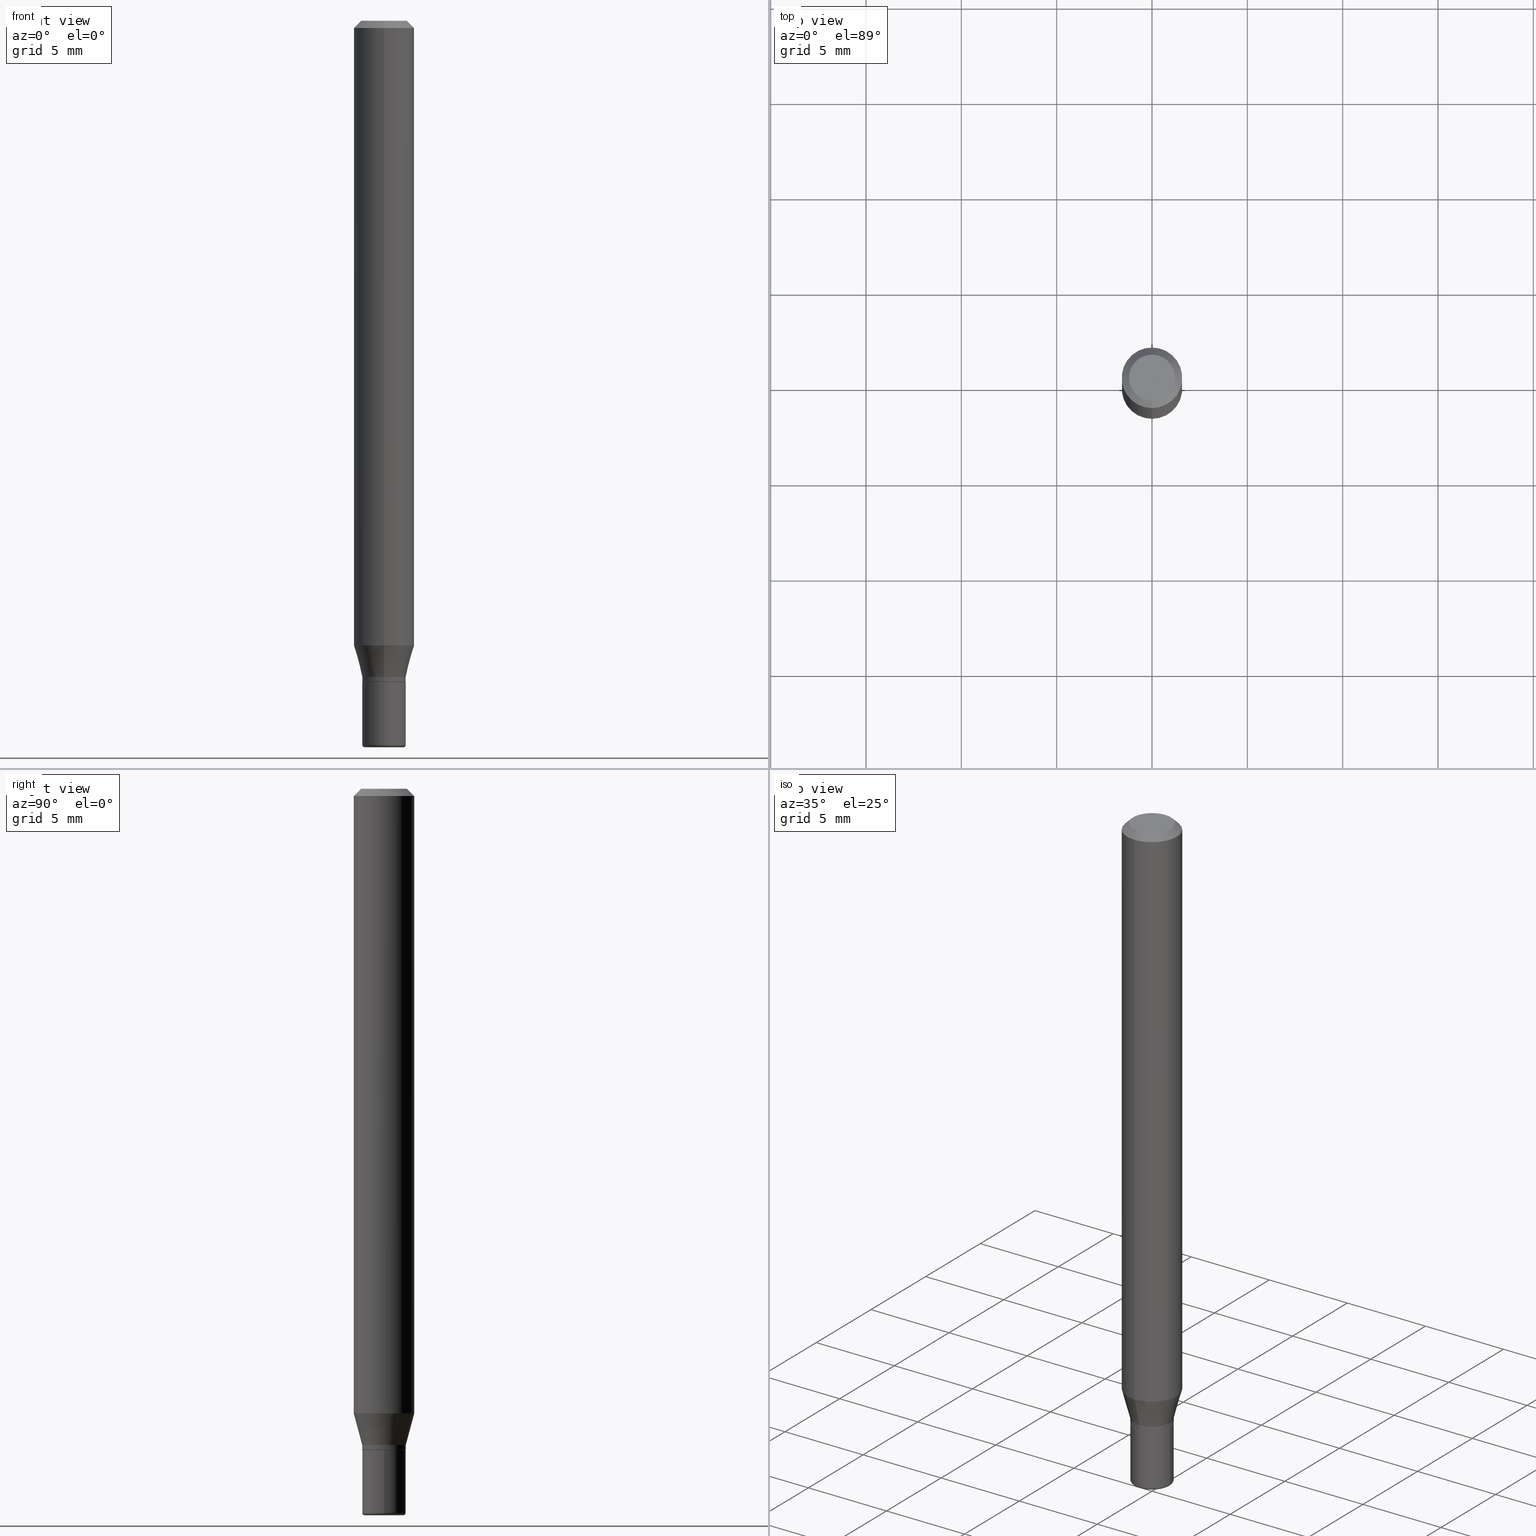
[diagram: canonical four-view strip — front | top / right | iso, engineering-drawing reading convention]
A machine part, canonical four-view strip (front | top / right | iso — engineering-drawing reading convention). The complete STEP part file that produces these views, byte-faithful:
ISO-10303-21;
HEADER;
FILE_DESCRIPTION (( 'STEP AP203' ),
    '1' );
FILE_NAME ('08716.STEP',
    '2024-02-29T20:33:48',
    ( '' ),
    ( '' ),
    'SwSTEP 2.0',
    'SolidWorks 2023',
    '' );
FILE_SCHEMA (( 'CONFIG_CONTROL_DESIGN' ));
ENDSEC;

DATA;
#1 = CARTESIAN_POINT ( 'NONE',  ( -0.04000000000000000083, -4.926512642219568995E-15, -1.499999999999999778 ) ) ;
#2 = FACE_OUTER_BOUND ( 'NONE', #187, .T. ) ;
#3 = APPROVAL_ROLE ( '' ) ;
#4 = CARTESIAN_POINT ( 'NONE',  ( 0.000000000000000000, 0.000000000000000000, 0.000000000000000000 ) ) ;
#5 = VECTOR ( 'NONE', #86, 39.37007874015748143 ) ;
#6 = FACE_OUTER_BOUND ( 'NONE', #452, .T. ) ;
#7 = ORIENTED_EDGE ( 'NONE', *, *, #157, .T. ) ;
#8 = PRODUCT_DEFINITION_FORMATION_WITH_SPECIFIED_SOURCE ( 'ANY', '', #314, .NOT_KNOWN. ) ;
#9 = EDGE_CURVE ( 'NONE', #503, #242, #404, .T. ) ;
#10 = SECURITY_CLASSIFICATION_LEVEL ( 'unclassified' ) ;
#11 = CARTESIAN_POINT ( 'NONE',  ( 3.338064920442711836E-29, -4.765872027520893280E-15, -1.364999999999999991 ) ) ;
#12 = ORIENTED_EDGE ( 'NONE', *, *, #70, .T. ) ;
#13 = PRODUCT_DEFINITION_SHAPE ( 'NONE', 'NONE',  #354 ) ;
#14 = FACE_OUTER_BOUND ( 'NONE', #219, .T. ) ;
#15 = DIRECTION ( 'NONE',  ( -6.982962677686266711E-15, -1.000000000000000000, 6.138984255425318536E-15 ) ) ;
#16 = EDGE_LOOP ( 'NONE', ( #156, #459, #223, #210 ) ) ;
#17 = FACE_OUTER_BOUND ( 'NONE', #285, .T. ) ;
#18 = EDGE_LOOP ( 'NONE', ( #233, #12, #308, #261 ) ) ;
#19 = CIRCLE ( 'NONE', #145, 0.04499999999999996364 ) ;
#20 = DIRECTION ( 'NONE',  ( -6.982962677686266711E-15, -1.000000000000000000, 6.138984255425318536E-15 ) ) ;
#21 = ORIENTED_EDGE ( 'NONE', *, *, #442, .T. ) ;
#22 = CARTESIAN_POINT ( 'NONE',  ( 3.153808195759828590E-29, -4.503049042200963587E-15, -1.289689110867544342 ) ) ;
#23 = DIMENSIONAL_EXPONENTS ( 1.000000000000000000, 0.000000000000000000, 0.000000000000000000, 0.000000000000000000, 0.000000000000000000, 0.000000000000000000, 0.000000000000000000 ) ;
#24 = DIRECTION ( 'NONE',  ( -2.445401895064720952E-29, 3.491577159375925381E-15, 1.000000000000000000 ) ) ;
#25 = ADVANCED_FACE ( 'NONE', ( #317 ), #112, .F. ) ;
#26 = EDGE_CURVE ( 'NONE', #487, #69, #455, .T. ) ;
#27 = AXIS2_PLACEMENT_3D ( 'NONE', #103, #502, #498 ) ;
#28 = FACE_OUTER_BOUND ( 'NONE', #71, .T. ) ;
#29 = CC_DESIGN_APPROVAL ( #236, ( #8 ) ) ;
#30 = EDGE_LOOP ( 'NONE', ( #246, #21, #332, #114 ) ) ;
#31 = CARTESIAN_POINT ( 'NONE',  ( 3.819167204710860394E-16, 0.04499999999999523131, -1.355000000000000204 ) ) ;
#32 = ORIENTED_EDGE ( 'NONE', *, *, #164, .F. ) ;
#33 = EDGE_LOOP ( 'NONE', ( #154, #74, #450, #355 ) ) ;
#34 = APPLICATION_CONTEXT ( 'configuration controlled 3d designs of mechanical parts and assemblies' ) ;
#35 = DATE_AND_TIME ( #386, #172 ) ;
#36 = CYLINDRICAL_SURFACE ( 'NONE', #281, 0.04499999999999995670 ) ;
#37 = CC_DESIGN_PERSON_AND_ORGANIZATION_ASSIGNMENT ( #165, #446, ( #8 ) ) ;
#38 = DIRECTION ( 'NONE',  ( -6.982962677686266711E-15, -1.000000000000000000, 3.491481338843145583E-15 ) ) ;
#39 = ORIENTED_EDGE ( 'NONE', *, *, #442, .F. ) ;
#40 = LOCAL_TIME ( 15, 33, 48.00000000000000000, #168 ) ;
#41 = DIRECTION ( 'NONE',  ( 1.000000000000000000, -6.982962677686273021E-15, 0.000000000000000000 ) ) ;
#42 = CARTESIAN_POINT ( 'NONE',  ( -0.04499999999999999833, -4.673074083453654421E-15, -1.364999999999999991 ) ) ;
#43 = AXIS2_PLACEMENT_3D ( 'NONE', #351, #146, #460 ) ;
#44 = EDGE_CURVE ( 'NONE', #352, #309, #481, .T. ) ;
#45 = AXIS2_PLACEMENT_3D ( 'NONE', #220, #506, #271 ) ;
#46 = APPROVAL_DATE_TIME ( #329, #236 ) ;
#47 = ORIENTED_EDGE ( 'NONE', *, *, #316, .F. ) ;
#48 = FACE_OUTER_BOUND ( 'NONE', #369, .T. ) ;
#49 = CC_DESIGN_DATE_AND_TIME_ASSIGNMENT ( #35, #431, ( #354 ) ) ;
#50 = DIRECTION ( 'NONE',  ( 1.000000000000000000, -6.982962677686261189E-15, 4.883557194083110098E-29 ) ) ;
#51 = ORIENTED_EDGE ( 'NONE', *, *, #137, .T. ) ;
#52 = CARTESIAN_POINT ( 'NONE',  ( -0.04499999999999990119, -4.673074083453654421E-15, -1.495000000000000329 ) ) ;
#53 = CIRCLE ( 'NONE', #480, 0.04449999999999994238 ) ;
#54 = ORIENTED_EDGE ( 'NONE', *, *, #230, .F. ) ;
#55 = FACE_OUTER_BOUND ( 'NONE', #18, .T. ) ;
#56 = DIRECTION ( 'NONE',  ( -2.445401895064720952E-29, 3.491577159375925381E-15, 1.000000000000000000 ) ) ;
#57 = PERSON_AND_ORGANIZATION ( #394, #255 ) ;
#58 = DIRECTION ( 'NONE',  ( 1.000000000000000000, -6.982962677686269077E-15, 0.000000000000000000 ) ) ;
#59 = DIRECTION ( 'NONE',  ( -6.982962677686265922E-15, -1.000000000000000000, 3.491577159375925381E-15 ) ) ;
#60 = CONICAL_SURFACE ( 'NONE', #61, 0.06250000000000000000, 0.7853981633974488341 ) ;
#61 = AXIS2_PLACEMENT_3D ( 'NONE', #291, #244, #257 ) ;
#62 = DIRECTION ( 'NONE',  ( -2.445401895064720952E-29, 3.491577159375925381E-15, 1.000000000000000000 ) ) ;
#63 = ADVANCED_FACE ( 'NONE', ( #6 ), #212, .T. ) ;
#64 = DIRECTION ( 'NONE',  ( 7.105427357601001859E-15, 1.000000000000000000, -3.491481338843145583E-15 ) ) ;
#65 = CC_DESIGN_PERSON_AND_ORGANIZATION_ASSIGNMENT ( #241, #279, ( #354 ) ) ;
#66 = DIRECTION ( 'NONE',  ( -2.445468806185136597E-29, 3.491481338843145583E-15, 1.000000000000000000 ) ) ;
#67 = VECTOR ( 'NONE', #374, 39.37007874015748143 ) ;
#68 = DIRECTION ( 'NONE',  ( 1.000000000000000000, -6.982962677686259611E-15, 0.000000000000000000 ) ) ;
#69 = VERTEX_POINT ( 'NONE', #399 ) ;
#70 = EDGE_CURVE ( 'NONE', #203, #467, #477, .T. ) ;
#71 = EDGE_LOOP ( 'NONE', ( #185, #102 ) ) ;
#72 = CARTESIAN_POINT ( 'NONE',  ( 3.840629472727447874E-16, 0.04750000000000000749, 1.073394357713768638E-16 ) ) ;
#73 = AXIS2_PLACEMENT_3D ( 'NONE', #254, #337, #490 ) ;
#74 = ORIENTED_EDGE ( 'NONE', *, *, #159, .T. ) ;
#75 = AXIS2_PLACEMENT_3D ( 'NONE', #333, #327, #286 ) ;
#76 = DIRECTION ( 'NONE',  ( 1.000000000000000000, 0.000000000000000000, 0.000000000000000000 ) ) ;
#77 = EDGE_CURVE ( 'NONE', #471, #296, #298, .T. ) ;
#78 = ADVANCED_FACE ( 'NONE', ( #407 ), #320, .T. ) ;
#79 = APPROVAL_DATE_TIME ( #278, #158 ) ;
#80 = CARTESIAN_POINT ( 'NONE',  ( -4.287811248607203282E-16, -0.06250000000000005551, -0.01499999999999948597 ) ) ;
#81 = PERSON_AND_ORGANIZATION_ROLE ( 'classification_officer' ) ;
#82 = AXIS2_PLACEMENT_3D ( 'NONE', #229, #457, #107 ) ;
#83 = DIRECTION ( 'NONE',  ( -6.982962677686265133E-15, -1.000000000000000000, 3.491577159375924592E-15 ) ) ;
#84 = DIRECTION ( 'NONE',  ( 1.000000000000000000, -6.982962677686266711E-15, 4.876176775795934672E-29 ) ) ;
#85 = ADVANCED_FACE ( 'NONE', ( #509 ), #36, .T. ) ;
#86 = DIRECTION ( 'NONE',  ( -2.445401895064721232E-29, 3.491577159375925381E-15, 1.000000000000000000 ) ) ;
#87 = PLANE ( 'NONE',  #310 ) ;
#88 = UNCERTAINTY_MEASURE_WITH_UNIT (LENGTH_MEASURE( 1.000000000000000082E-05 ), #152, 'distance_accuracy_value', 'NONE');
#89 = ORIENTED_EDGE ( 'NONE', *, *, #444, .T. ) ;
#90 = FACE_OUTER_BOUND ( 'NONE', #313, .T. ) ;
#91 = DIRECTION ( 'NONE',  ( -2.445468806185136877E-29, 3.491481338843145188E-15, 1.000000000000000000 ) ) ;
#92 = AXIS2_PLACEMENT_3D ( 'NONE', #217, #56, #15 ) ;
#93 = AXIS2_PLACEMENT_3D ( 'NONE', #382, #461, #101 ) ;
#94 = ORIENTED_EDGE ( 'NONE', *, *, #504, .T. ) ;
#95 = DIRECTION ( 'NONE',  ( -2.445401895064720952E-29, 3.491577159375925381E-15, 1.000000000000000000 ) ) ;
#96 = DIRECTION ( 'NONE',  ( 1.000000000000000000, -6.982962677686266711E-15, 4.876176775795934672E-29 ) ) ;
#97 = CARTESIAN_POINT ( 'NONE',  ( 3.161915174132775027E-16, 0.04449999999999518230, -1.365000000000000435 ) ) ;
#98 = EDGE_LOOP ( 'NONE', ( #371, #135, #484, #32 ) ) ;
#99 = CARTESIAN_POINT ( 'NONE',  ( 0.000000000000000000, 0.000000000000000000, 0.000000000000000000 ) ) ;
#100 = CIRCLE ( 'NONE', #124, 0.04750000000000000749 ) ;
#101 = DIRECTION ( 'NONE',  ( -6.982962677686265922E-15, -1.000000000000000000, 3.483106191921935554E-15 ) ) ;
#102 = ORIENTED_EDGE ( 'NONE', *, *, #444, .F. ) ;
#103 = CARTESIAN_POINT ( 'NONE',  ( 3.655975865246779122E-29, -5.219764601570503141E-15, -1.495000000000000107 ) ) ;
#104 = DIRECTION ( 'NONE',  ( -6.982962677686265133E-15, -1.000000000000000000, 3.491577159375924592E-15 ) ) ;
#105 = ORIENTED_EDGE ( 'NONE', *, *, #222, .F. ) ;
#106 = CLOSED_SHELL ( 'NONE', ( #323, #78, #266, #204, #436, #445, #179, #117, #25, #280, #411, #85 ) ) ;
#107 = DIRECTION ( 'NONE',  ( -6.982962677686265922E-15, -1.000000000000000000, 4.370956789862821150E-15 ) ) ;
#108 = APPROVAL_PERSON_ORGANIZATION ( #367, #236, #3 ) ;
#109 = APPLICATION_CONTEXT ( 'configuration controlled 3d designs of mechanical parts and assemblies' ) ;
#110 = CARTESIAN_POINT ( 'NONE',  ( 3.197442310920447267E-16, 0.04499999999999995670, -1.571209721719164715E-16 ) ) ;
#111 = FACE_OUTER_BOUND ( 'NONE', #400, .T. ) ;
#112 = PLANE ( 'NONE',  #169 ) ;
#113 = CARTESIAN_POINT ( 'NONE',  ( 3.179678742526777547E-16, 0.04449999999999518230, -1.365000000000000435 ) ) ;
#114 = ORIENTED_EDGE ( 'NONE', *, *, #159, .F. ) ;
#115 = CARTESIAN_POINT ( 'NONE',  ( 0.000000000000000000, 0.000000000000000000, 0.000000000000000000 ) ) ;
#116 = VECTOR ( 'NONE', #518, 39.37007874015748143 ) ;
#117 = ADVANCED_FACE ( 'NONE', ( #111 ), #358, .T. ) ;
#118 = CALENDAR_DATE ( 2024, 29, 2 ) ;
#119 = PERSON_AND_ORGANIZATION ( #394, #255 ) ;
#120 = CARTESIAN_POINT ( 'NONE',  ( -0.04499999999999994976, 3.197442310920447267E-16, -2.213520790614704757E-30 ) ) ;
#121 = CC_DESIGN_PERSON_AND_ORGANIZATION_ASSIGNMENT ( #132, #439, ( #8 ) ) ;
#122 = EDGE_LOOP ( 'NONE', ( #194, #180, #301, #424 ) ) ;
#123 = CARTESIAN_POINT ( 'NONE',  ( 3.655975865246779683E-29, -5.219764601570503930E-15, -1.495000000000000329 ) ) ;
#124 = AXIS2_PLACEMENT_3D ( 'NONE', #224, #297, #104 ) ;
#125 = LOCAL_TIME ( 15, 33, 48.00000000000000000, #488 ) ;
#126 = LINE ( 'NONE', #80, #116 ) ;
#127 = CARTESIAN_POINT ( 'NONE',  ( -3.107418391570051034E-16, -0.04450000000000470940, -1.364999999999999769 ) ) ;
#128 = VERTEX_POINT ( 'NONE', #482 ) ;
#129 = PERSON_AND_ORGANIZATION ( #394, #255 ) ;
#130 = CARTESIAN_POINT ( 'NONE',  ( -3.142333204958816371E-16, -0.04499999999999995670, 1.571209721719164715E-16 ) ) ;
#131 = VERTEX_POINT ( 'NONE', #441 ) ;
#132 = PERSON_AND_ORGANIZATION ( #394, #255 ) ;
#133 = LINE ( 'NONE', #365, #134 ) ;
#134 = VECTOR ( 'NONE', #288, 39.37007874015748143 ) ;
#135 = ORIENTED_EDGE ( 'NONE', *, *, #495, .T. ) ;
#136 = CALENDAR_DATE ( 2024, 29, 2 ) ;
#137 = EDGE_CURVE ( 'NONE', #69, #148, #126, .T. ) ;
#138 = CARTESIAN_POINT ( 'NONE',  ( 4.364351673553919652E-16, 0.06249999999999995143, -0.01499999999999992138 ) ) ;
#139 = CARTESIAN_POINT ( 'NONE',  ( -0.04000000000000000083, -4.935547507266463603E-15, -1.495000000000000107 ) ) ;
#140 = ORIENTED_EDGE ( 'NONE', *, *, #137, .F. ) ;
#141 = ADVANCED_FACE ( 'NONE', ( #2 ), #479, .T. ) ;
#142 = DIRECTION ( 'NONE',  ( -2.445401895064720952E-29, 3.491577159375925381E-15, 1.000000000000000000 ) ) ;
#143 = VERTEX_POINT ( 'NONE', #127 ) ;
#144 = AXIS2_PLACEMENT_3D ( 'NONE', #181, #339, #483 ) ;
#145 = AXIS2_PLACEMENT_3D ( 'NONE', #345, #343, #470 ) ;
#146 = DIRECTION ( 'NONE',  ( -2.445401895064720952E-29, 3.491577159375925381E-15, 1.000000000000000000 ) ) ;
#147 = FACE_OUTER_BOUND ( 'NONE', #491, .T. ) ;
#148 = VERTEX_POINT ( 'NONE', #451 ) ;
#149 = FACE_OUTER_BOUND ( 'NONE', #16, .T. ) ;
#150 = EDGE_LOOP ( 'NONE', ( #256, #240, #226, #105 ) ) ;
#151 = AXIS2_PLACEMENT_3D ( 'NONE', #170, #415, #59 ) ;
#152 =( CONVERSION_BASED_UNIT ( 'INCH', #508 ) LENGTH_UNIT ( ) NAMED_UNIT ( #23 ) );
#153 = APPROVAL_PERSON_ORGANIZATION ( #119, #158, #163 ) ;
#154 = ORIENTED_EDGE ( 'NONE', *, *, #495, .F. ) ;
#155 = CARTESIAN_POINT ( 'NONE',  ( 0.04000000000000000083, -5.516540515372168214E-15, -1.499999999999999778 ) ) ;
#156 = ORIENTED_EDGE ( 'NONE', *, *, #463, .T. ) ;
#157 = EDGE_CURVE ( 'NONE', #128, #467, #214, .T. ) ;
#158 = APPROVAL ( #160, 'UNSPECIFIED' ) ;
#159 = EDGE_CURVE ( 'NONE', #296, #471, #456, .T. ) ;
#160 = APPROVAL_STATUS ( 'not_yet_approved' ) ;
#161 = CONICAL_SURFACE ( 'NONE', #447, 0.04449999999999994238, 0.7853981633975507526 ) ;
#162 = VECTOR ( 'NONE', #432, 39.37007874015748143 ) ;
#163 = APPROVAL_ROLE ( '' ) ;
#164 = EDGE_CURVE ( 'NONE', #471, #289, #489, .T. ) ;
#165 = PERSON_AND_ORGANIZATION ( #394, #255 ) ;
#166 = LINE ( 'NONE', #449, #474 ) ;
#167 = CARTESIAN_POINT ( 'NONE',  ( 3.655975865246779122E-29, -5.219764601570503141E-15, -1.495000000000000107 ) ) ;
#168 = COORDINATED_UNIVERSAL_TIME_OFFSET ( 5, 0, .BEHIND. ) ;
#169 = AXIS2_PLACEMENT_3D ( 'NONE', #273, #232, #195 ) ;
#170 = CARTESIAN_POINT ( 'NONE',  ( 0.000000000000000000, 0.000000000000000000, 0.000000000000000000 ) ) ;
#171 = CIRCLE ( 'NONE', #238, 0.004999999999999903827 ) ;
#172 = LOCAL_TIME ( 15, 33, 48.00000000000000000, #199 ) ;
#173 = ORIENTED_EDGE ( 'NONE', *, *, #311, .F. ) ;
#174 = CARTESIAN_POINT ( 'NONE',  ( 3.336750885815811529E-29, -4.764257033968451140E-15, -1.364500000000000046 ) ) ;
#175 = EDGE_CURVE ( 'NONE', #465, #296, #294, .T. ) ;
#176 = APPROVAL_ROLE ( '' ) ;
#177 = CARTESIAN_POINT ( 'NONE',  ( 3.142333204959153116E-16, 0.04499999999999523131, -1.365000000000000435 ) ) ;
#178 = EDGE_CURVE ( 'NONE', #143, #471, #166, .T. ) ;
#179 = ADVANCED_FACE ( 'NONE', ( #90 ), #330, .T. ) ;
#180 = ORIENTED_EDGE ( 'NONE', *, *, #472, .T. ) ;
#181 = CARTESIAN_POINT ( 'NONE',  ( 3.337973586763344623E-29, -4.766002822548138287E-15, -1.364999999999999991 ) ) ;
#182 = CIRCLE ( 'NONE', #464, 0.04449999999999994238 ) ;
#183 = FACE_OUTER_BOUND ( 'NONE', #98, .T. ) ;
#184 = ADVANCED_FACE ( 'NONE', ( #14 ), #87, .F. ) ;
#185 = ORIENTED_EDGE ( 'NONE', *, *, #9, .F. ) ;
#186 = CARTESIAN_POINT ( 'NONE',  ( 3.338064920442711836E-29, -4.765872027520893280E-15, -1.364999999999999991 ) ) ;
#187 = EDGE_LOOP ( 'NONE', ( #338, #378, #231, #258 ) ) ;
#188 = AXIS2_PLACEMENT_3D ( 'NONE', #167, #326, #50 ) ;
#189 = TOROIDAL_SURFACE ( 'NONE', #27, 0.04000000000000000083, 0.004999999999999903827 ) ;
#190 = CONICAL_SURFACE ( 'NONE', #45, 0.04499999999999996364, 0.2617993877991493523 ) ;
#191 = DIRECTION ( 'NONE',  ( -2.445401895064720952E-29, 3.491577159375925381E-15, 1.000000000000000000 ) ) ;
#192 = FACE_OUTER_BOUND ( 'NONE', #30, .T. ) ;
#193 = ORIENTED_EDGE ( 'NONE', *, *, #392, .T. ) ;
#194 = ORIENTED_EDGE ( 'NONE', *, *, #505, .F. ) ;
#195 = DIRECTION ( 'NONE',  ( 6.982962677686265922E-15, 1.000000000000000000, -3.491577159375925381E-15 ) ) ;
#196 = DIRECTION ( 'NONE',  ( -2.445401895064721232E-29, 3.491577159375925381E-15, 1.000000000000000000 ) ) ;
#197 = CARTESIAN_POINT ( 'NONE',  ( 0.000000000000000000, 0.000000000000000000, 0.000000000000000000 ) ) ;
#198 = AXIS2_PLACEMENT_3D ( 'NONE', #11, #494, #58 ) ;
#199 = COORDINATED_UNIVERSAL_TIME_OFFSET ( 5, 0, .BEHIND. ) ;
#200 = ORIENTED_EDGE ( 'NONE', *, *, #392, .F. ) ;
#201 = EDGE_CURVE ( 'NONE', #131, #203, #426, .T. ) ;
#202 = MECHANICAL_CONTEXT ( 'NONE', #109, 'mechanical' ) ;
#203 = VERTEX_POINT ( 'NONE', #52 ) ;
#204 = ADVANCED_FACE ( 'NONE', ( #213 ), #368, .T. ) ;
#205 = CARTESIAN_POINT ( 'NONE',  ( 0.04499999999999994976, -3.142333204958816371E-16, 2.194279549108168164E-30 ) ) ;
#206 = CIRCLE ( 'NONE', #340, 0.04000000000000000083 ) ;
#207 = CC_DESIGN_SECURITY_CLASSIFICATION ( #300, ( #8 ) ) ;
#208 = APPROVAL_DATE_TIME ( #211, #453 ) ;
#209 = CARTESIAN_POINT ( 'NONE',  ( -3.142333204958486036E-16, -0.04500000000000469597, -1.354999999999999538 ) ) ;
#210 = ORIENTED_EDGE ( 'NONE', *, *, #215, .F. ) ;
#211 = DATE_AND_TIME ( #324, #421 ) ;
#212 = TOROIDAL_SURFACE ( 'NONE', #188, 0.04000000000000000083, 0.004999999999999903827 ) ;
#213 = FACE_OUTER_BOUND ( 'NONE', #150, .T. ) ;
#214 = CIRCLE ( 'NONE', #198, 0.04499999999999999833 ) ;
#215 = EDGE_CURVE ( 'NONE', #289, #429, #336, .T. ) ;
#216 = CYLINDRICAL_SURFACE ( 'NONE', #516, 0.04499999999999994976 ) ;
#217 = CARTESIAN_POINT ( 'NONE',  ( 3.337973586763344623E-29, -4.766002822548138287E-15, -1.364999999999999991 ) ) ;
#218 = DIRECTION ( 'NONE',  ( -4.937700262165053702E-15, -0.7071067811866175168, 0.7071067811864775177 ) ) ;
#219 = EDGE_LOOP ( 'NONE', ( #7, #359 ) ) ;
#220 = CARTESIAN_POINT ( 'NONE',  ( 3.313519567812696747E-29, -4.731087050954377992E-15, -1.354999999999999982 ) ) ;
#221 = MANIFOLD_SOLID_BREP ( 'Body-Move/Copy2[2]', #106 ) ;
#222 = EDGE_CURVE ( 'NONE', #429, #148, #133, .T. ) ;
#223 = ORIENTED_EDGE ( 'NONE', *, *, #362, .F. ) ;
#224 = CARTESIAN_POINT ( 'NONE',  ( -6.680577562598756531E-45, 9.538616975837323053E-31, 2.731893508417333475E-16 ) ) ;
#225 = DIRECTION ( 'NONE',  ( -6.982962677686265133E-15, -1.000000000000000000, 3.491577159375924986E-15 ) ) ;
#226 = ORIENTED_EDGE ( 'NONE', *, *, #409, .F. ) ;
#227 = CARTESIAN_POINT ( 'NONE',  ( 3.655975865246779683E-29, -5.219764601570503930E-15, -1.495000000000000329 ) ) ;
#228 = AXIS2_PLACEMENT_3D ( 'NONE', #22, #24, #264 ) ;
#229 = CARTESIAN_POINT ( 'NONE',  ( 3.153808195759828590E-29, -4.503049042200963587E-15, -1.289689110867544342 ) ) ;
#230 = EDGE_CURVE ( 'NONE', #487, #309, #443, .T. ) ;
#231 = ORIENTED_EDGE ( 'NONE', *, *, #511, .T. ) ;
#232 = DIRECTION ( 'NONE',  ( 2.445401895064720671E-29, -3.491577159375925381E-15, -1.000000000000000000 ) ) ;
#233 = ORIENTED_EDGE ( 'NONE', *, *, #201, .T. ) ;
#234 = LINE ( 'NONE', #466, #270 ) ;
#235 = ORIENTED_EDGE ( 'NONE', *, *, #201, .F. ) ;
#236 = APPROVAL ( #247, 'UNSPECIFIED' ) ;
#237 = AXIS2_PLACEMENT_3D ( 'NONE', #356, #331, #83 ) ;
#238 = AXIS2_PLACEMENT_3D ( 'NONE', #139, #64, #385 ) ;
#239 = DIRECTION ( 'NONE',  ( 1.839019923739593610E-15, 0.2588190451025240146, 0.9659258262890673130 ) ) ;
#240 = ORIENTED_EDGE ( 'NONE', *, *, #44, .T. ) ;
#241 = PERSON_AND_ORGANIZATION ( #394, #255 ) ;
#242 = VERTEX_POINT ( 'NONE', #1 ) ;
#243 = AXIS2_PLACEMENT_3D ( 'NONE', #295, #142, #302 ) ;
#244 = DIRECTION ( 'NONE',  ( 2.445401895064720952E-29, -3.491577159375925381E-15, -1.000000000000000000 ) ) ;
#245 = CARTESIAN_POINT ( 'NONE',  ( 4.440892098500625669E-16, 0.06250000000000000000, -2.182235724609953363E-16 ) ) ;
#246 = ORIENTED_EDGE ( 'NONE', *, *, #175, .F. ) ;
#247 = APPROVAL_STATUS ( 'not_yet_approved' ) ;
#248 = DIRECTION ( 'NONE',  ( 2.438088387897960049E-29, -3.491481338843145188E-15, -1.000000000000000000 ) ) ;
#249 = EDGE_CURVE ( 'NONE', #143, #465, #53, .T. ) ;
#250 = ADVANCED_FACE ( 'NONE', ( #55 ), #216, .T. ) ;
#251 = ORIENTED_EDGE ( 'NONE', *, *, #328, .F. ) ;
#252 = CARTESIAN_POINT ( 'NONE',  ( 3.337973586763344623E-29, -4.766002822548138287E-15, -1.364999999999999991 ) ) ;
#253 = AXIS2_PLACEMENT_3D ( 'NONE', #370, #95, #260 ) ;
#254 = CARTESIAN_POINT ( 'NONE',  ( 3.336750885815811529E-29, -4.764257033968451140E-15, -1.364500000000000046 ) ) ;
#255 = ORGANIZATION ( 'UNSPECIFIED', 'UNSPECIFIED', '' ) ;
#256 = ORIENTED_EDGE ( 'NONE', *, *, #362, .T. ) ;
#257 = DIRECTION ( 'NONE',  ( 6.982962677686265922E-15, 1.000000000000000000, -3.483106191921935554E-15 ) ) ;
#258 = ORIENTED_EDGE ( 'NONE', *, *, #433, .F. ) ;
#259 = CC_DESIGN_PERSON_AND_ORGANIZATION_ASSIGNMENT ( #129, #81, ( #300 ) ) ;
#260 = DIRECTION ( 'NONE',  ( -6.982962677686265922E-15, -1.000000000000000000, 3.491577159375925381E-15 ) ) ;
#261 = ORIENTED_EDGE ( 'NONE', *, *, #511, .F. ) ;
#262 = PLANE ( 'NONE',  #268 ) ;
#263 = CIRCLE ( 'NONE', #93, 0.06250000000000000000 ) ;
#264 = DIRECTION ( 'NONE',  ( -6.982962677686265922E-15, -1.000000000000000000, 4.370956789862821150E-15 ) ) ;
#265 = CARTESIAN_POINT ( 'NONE',  ( 3.337973586763344623E-29, -4.766002822548138287E-15, -1.364999999999999991 ) ) ;
#266 = ADVANCED_FACE ( 'NONE', ( #48 ), #60, .T. ) ;
#267 = DIRECTION ( 'NONE',  ( 1.000000000000000000, -6.982962677686269077E-15, 0.000000000000000000 ) ) ;
#268 = AXIS2_PLACEMENT_3D ( 'NONE', #419, #497, #422 ) ;
#269 = CARTESIAN_POINT ( 'NONE',  ( 3.668203209277704335E-29, -5.237222008264717388E-15, -1.499999999999999778 ) ) ;
#270 = VECTOR ( 'NONE', #239, 39.37007874015748854 ) ;
#271 = DIRECTION ( 'NONE',  ( -6.982962677686265133E-15, -1.000000000000000000, 6.070773319253922996E-15 ) ) ;
#272 = ORIENTED_EDGE ( 'NONE', *, *, #249, .T. ) ;
#273 = CARTESIAN_POINT ( 'NONE',  ( 3.316907271900976589E-16, 0.04750000000000000749, -2.925523964948977298E-17 ) ) ;
#274 = CARTESIAN_POINT ( 'NONE',  ( -3.142333204958474203E-16, -0.04500000000000459188, -1.364499999999999824 ) ) ;
#275 = AXIS2_PLACEMENT_3D ( 'NONE', #123, #401, #485 ) ;
#276 = LINE ( 'NONE', #205, #162 ) ;
#277 = ORIENTED_EDGE ( 'NONE', *, *, #504, .F. ) ;
#278 = DATE_AND_TIME ( #118, #360 ) ;
#279 = PERSON_AND_ORGANIZATION_ROLE ( 'creator' ) ;
#280 = ADVANCED_FACE ( 'NONE', ( #17 ), #398, .F. ) ;
#281 = AXIS2_PLACEMENT_3D ( 'NONE', #197, #315, #468 ) ;
#282 = DIRECTION ( 'NONE',  ( -2.445401895064720952E-29, 3.491577159375925381E-15, 1.000000000000000000 ) ) ;
#283 = CALENDAR_DATE ( 2024, 29, 2 ) ;
#284 = DIRECTION ( 'NONE',  ( -6.982962677686265133E-15, -1.000000000000000000, 6.070773319253925363E-15 ) ) ;
#285 = EDGE_LOOP ( 'NONE', ( #428, #39 ) ) ;
#286 = DIRECTION ( 'NONE',  ( 6.982962677686265922E-15, 1.000000000000000000, -3.483106191921935554E-15 ) ) ;
#287 = DATE_TIME_ROLE ( 'classification_date' ) ;
#288 = DIRECTION ( 'NONE',  ( -2.445401895064721232E-29, 3.491577159375925381E-15, 1.000000000000000000 ) ) ;
#289 = VERTEX_POINT ( 'NONE', #209 ) ;
#290 = DATE_AND_TIME ( #136, #125 ) ;
#291 = CARTESIAN_POINT ( 'NONE',  ( 3.668102842597008945E-31, -5.237365739063784188E-17, -0.01499999999999970281 ) ) ;
#292 = CIRCLE ( 'NONE', #363, 0.04499999999999999833 ) ;
#293 = ORIENTED_EDGE ( 'NONE', *, *, #77, .F. ) ;
#294 = LINE ( 'NONE', #97, #321 ) ;
#295 = CARTESIAN_POINT ( 'NONE',  ( 3.668102842597008945E-31, -5.237365739063784188E-17, -0.01499999999999970281 ) ) ;
#296 = VERTEX_POINT ( 'NONE', #501 ) ;
#297 = DIRECTION ( 'NONE',  ( -2.445401895064720952E-29, 3.491577159375925381E-15, 1.000000000000000000 ) ) ;
#298 = CIRCLE ( 'NONE', #73, 0.04499999999999994976 ) ;
#299 = AXIS2_PLACEMENT_3D ( 'NONE', #99, #191, #225 ) ;
#300 = SECURITY_CLASSIFICATION ( '', '', #10 ) ;
#301 = ORIENTED_EDGE ( 'NONE', *, *, #215, .T. ) ;
#302 = DIRECTION ( 'NONE',  ( -6.982962677686265922E-15, -1.000000000000000000, 3.483106191921935554E-15 ) ) ;
#303 = ADVANCED_FACE ( 'NONE', ( #28 ), #262, .F. ) ;
#304 = ORIENTED_EDGE ( 'NONE', *, *, #26, .F. ) ;
#305 = FACE_OUTER_BOUND ( 'NONE', #122, .T. ) ;
#306 = ORIENTED_EDGE ( 'NONE', *, *, #9, .T. ) ;
#307 = CARTESIAN_POINT ( 'NONE',  ( 4.440892098500942692E-16, 0.06249999999999995143, -0.01499999999999992138 ) ) ;
#308 = ORIENTED_EDGE ( 'NONE', *, *, #157, .F. ) ;
#309 = VERTEX_POINT ( 'NONE', #307 ) ;
#310 = AXIS2_PLACEMENT_3D ( 'NONE', #177, #248, #334 ) ;
#311 = EDGE_CURVE ( 'NONE', #203, #131, #349, .T. ) ;
#312 =( NAMED_UNIT ( * ) SI_UNIT ( $, .STERADIAN. ) SOLID_ANGLE_UNIT ( ) );
#313 = EDGE_LOOP ( 'NONE', ( #403, #344, #346, #200 ) ) ;
#314 = PRODUCT ( '08716', '08716', '', ( #202 ) ) ;
#315 = DIRECTION ( 'NONE',  ( -2.445401895064720952E-29, 3.491577159375925381E-15, 1.000000000000000000 ) ) ;
#316 = EDGE_CURVE ( 'NONE', #242, #203, #171, .T. ) ;
#317 = FACE_OUTER_BOUND ( 'NONE', #417, .T. ) ;
#318 = CARTESIAN_POINT ( 'NONE',  ( 0.04000000000000000083, -5.499083108677953967E-15, -1.495000000000000107 ) ) ;
#319 = VERTEX_POINT ( 'NONE', #31 ) ;
#320 = CONICAL_SURFACE ( 'NONE', #92, 0.04449999999999994238, 0.7853981633975507526 ) ;
#321 = VECTOR ( 'NONE', #478, 39.37007874015748143 ) ;
#322 = COORDINATED_UNIVERSAL_TIME_OFFSET ( 5, 0, .BEHIND. ) ;
#323 = ADVANCED_FACE ( 'NONE', ( #183 ), #462, .T. ) ;
#324 = CALENDAR_DATE ( 2024, 29, 2 ) ;
#325 = CARTESIAN_POINT ( 'NONE',  ( -3.142333204958486036E-16, -0.04500000000000469597, -1.354999999999999538 ) ) ;
#326 = DIRECTION ( 'NONE',  ( -2.445468806185136597E-29, 3.491481338843145583E-15, 1.000000000000000000 ) ) ;
#327 = DIRECTION ( 'NONE',  ( 2.445401895064720952E-29, -3.491577159375925381E-15, -1.000000000000000000 ) ) ;
#328 = EDGE_CURVE ( 'NONE', #69, #487, #100, .T. ) ;
#329 = DATE_AND_TIME ( #283, #40 ) ;
#330 = CYLINDRICAL_SURFACE ( 'NONE', #151, 0.06250000000000000000 ) ;
#331 = DIRECTION ( 'NONE',  ( -2.445401895064720952E-29, 3.491577159375925381E-15, 1.000000000000000000 ) ) ;
#332 = ORIENTED_EDGE ( 'NONE', *, *, #178, .T. ) ;
#333 = CARTESIAN_POINT ( 'NONE',  ( 3.668102842597008945E-31, -5.237365739063784188E-17, -0.01499999999999970281 ) ) ;
#334 = DIRECTION ( 'NONE',  ( -1.000000000000000000, 6.982962677686265922E-15, -4.876176775795935793E-29 ) ) ;
#335 = ORIENTED_EDGE ( 'NONE', *, *, #26, .T. ) ;
#336 = LINE ( 'NONE', #325, #510 ) ;
#337 = DIRECTION ( 'NONE',  ( -2.445401895064720952E-29, 3.491577159375925381E-15, 1.000000000000000000 ) ) ;
#338 = ORIENTED_EDGE ( 'NONE', *, *, #70, .F. ) ;
#339 = DIRECTION ( 'NONE',  ( -2.445401895064720671E-29, 3.491577159375925381E-15, 1.000000000000000000 ) ) ;
#340 = AXIS2_PLACEMENT_3D ( 'NONE', #454, #66, #68 ) ;
#341 = AXIS2_PLACEMENT_3D ( 'NONE', #115, #517, #76 ) ;
#342 = ORIENTED_EDGE ( 'NONE', *, *, #409, .T. ) ;
#343 = DIRECTION ( 'NONE',  ( -2.445401895064720952E-29, 3.491577159375925381E-15, 1.000000000000000000 ) ) ;
#344 = ORIENTED_EDGE ( 'NONE', *, *, #413, .T. ) ;
#345 = CARTESIAN_POINT ( 'NONE',  ( 3.313519567812696747E-29, -4.731087050954377992E-15, -1.354999999999999982 ) ) ;
#346 = ORIENTED_EDGE ( 'NONE', *, *, #222, .T. ) ;
#347 = ADVANCED_FACE ( 'NONE', ( #147 ), #189, .T. ) ;
#348 = CARTESIAN_POINT ( 'NONE',  ( 4.440892098500942692E-16, 0.06249999999999553135, -1.289689110867544564 ) ) ;
#349 = CIRCLE ( 'NONE', #357, 0.04499999999999990119 ) ;
#350 = EDGE_LOOP ( 'NONE', ( #272, #514, #293, #414 ) ) ;
#351 = CARTESIAN_POINT ( 'NONE',  ( 3.313519567812696747E-29, -4.731087050954377992E-15, -1.354999999999999982 ) ) ;
#352 = VERTEX_POINT ( 'NONE', #348 ) ;
#353 = CARTESIAN_POINT ( 'NONE',  ( -4.364351673553598685E-16, -0.06250000000000446865, -1.289689110867544120 ) ) ;
#354 = PRODUCT_DEFINITION ( 'UNKNOWN', '', #8, #402 ) ;
#355 = ORIENTED_EDGE ( 'NONE', *, *, #472, .F. ) ;
#356 = CARTESIAN_POINT ( 'NONE',  ( -6.680577562598756531E-45, 9.538616975837323053E-31, 2.731893508417333475E-16 ) ) ;
#357 = AXIS2_PLACEMENT_3D ( 'NONE', #227, #425, #430 ) ;
#358 = CONICAL_SURFACE ( 'NONE', #75, 0.06250000000000000000, 0.7853981633974488341 ) ;
#359 = ORIENTED_EDGE ( 'NONE', *, *, #433, .T. ) ;
#360 = LOCAL_TIME ( 15, 33, 48.00000000000000000, #322 ) ;
#361 = DIRECTION ( 'NONE',  ( -2.445401895064720952E-29, 3.491577159375925381E-15, 1.000000000000000000 ) ) ;
#362 = EDGE_CURVE ( 'NONE', #429, #352, #418, .T. ) ;
#363 = AXIS2_PLACEMENT_3D ( 'NONE', #186, #381, #267 ) ;
#364 = CC_DESIGN_APPROVAL ( #453, ( #300 ) ) ;
#365 = CARTESIAN_POINT ( 'NONE',  ( -4.364351673553916201E-16, -0.06250000000000000000, 2.182235724609953363E-16 ) ) ;
#366 = PRODUCT_RELATED_PRODUCT_CATEGORY ( 'detail', '', ( #314 ) ) ;
#367 = PERSON_AND_ORGANIZATION ( #394, #255 ) ;
#368 = CYLINDRICAL_SURFACE ( 'NONE', #253, 0.06250000000000000000 ) ;
#369 = EDGE_LOOP ( 'NONE', ( #251, #51, #342, #54 ) ) ;
#370 = CARTESIAN_POINT ( 'NONE',  ( 0.000000000000000000, 0.000000000000000000, 0.000000000000000000 ) ) ;
#371 = ORIENTED_EDGE ( 'NONE', *, *, #77, .T. ) ;
#372 = DIRECTION ( 'NONE',  ( -2.445401895064721232E-29, 3.491577159375925381E-15, 1.000000000000000000 ) ) ;
#373 = COORDINATED_UNIVERSAL_TIME_OFFSET ( 5, 0, .BEHIND. ) ;
#374 = DIRECTION ( 'NONE',  ( 4.937700262164550409E-15, 0.7071067811865454633, -0.7071067811865495711 ) ) ;
#375 = DIRECTION ( 'NONE',  ( -2.445401895064720952E-29, 3.491577159375925381E-15, 1.000000000000000000 ) ) ;
#376 = VECTOR ( 'NONE', #372, 39.37007874015748143 ) ;
#377 = CIRCLE ( 'NONE', #397, 0.004999999999999903827 ) ;
#378 = ORIENTED_EDGE ( 'NONE', *, *, #311, .T. ) ;
#379 = DIRECTION ( 'NONE',  ( -6.982962677686266711E-15, -1.000000000000000000, 6.138984255425318536E-15 ) ) ;
#380 = DIRECTION ( 'NONE',  ( -2.445468806185136597E-29, 3.491481338843145583E-15, 1.000000000000000000 ) ) ;
#381 = DIRECTION ( 'NONE',  ( -2.445468806185136597E-29, 3.491481338843145583E-15, 1.000000000000000000 ) ) ;
#382 = CARTESIAN_POINT ( 'NONE',  ( 3.668102842597008945E-31, -5.237365739063784188E-17, -0.01499999999999970281 ) ) ;
#383 = CIRCLE ( 'NONE', #228, 0.06250000000000000000 ) ;
#384 = AXIS2_PLACEMENT_3D ( 'NONE', #513, #361, #395 ) ;
#385 = DIRECTION ( 'NONE',  ( -1.000000000000000000, 7.105427357601061812E-15, 0.000000000000000000 ) ) ;
#386 = CALENDAR_DATE ( 2024, 29, 2 ) ;
#387 = MANIFOLD_SOLID_BREP ( 'Body-Move/Copy2[1]', #396 ) ;
#388 = PERSON_AND_ORGANIZATION_ROLE ( 'design_owner' ) ;
#389 = AXIS2_PLACEMENT_3D ( 'NONE', #269, #507, #469 ) ;
#390 = CIRCLE ( 'NONE', #243, 0.06250000000000000000 ) ;
#391 = APPLICATION_PROTOCOL_DEFINITION ( 'international standard', 'config_control_design', 1994, #109 ) ;
#392 = EDGE_CURVE ( 'NONE', #309, #148, #263, .T. ) ;
#393 = PERSON_AND_ORGANIZATION ( #394, #255 ) ;
#394 = PERSON ( 'UNSPECIFIED', 'UNSPECIFIED', 'UNSPECIFIED', ('UNSPECIFIED'), ('UNSPECIFIED'), ('UNSPECIFIED') ) ;
#395 = DIRECTION ( 'NONE',  ( -6.982962677686265133E-15, -1.000000000000000000, 6.070773319253922996E-15 ) ) ;
#396 = CLOSED_SHELL ( 'NONE', ( #63, #250, #184, #141, #347, #303 ) ) ;
#397 = AXIS2_PLACEMENT_3D ( 'NONE', #318, #38, #41 ) ;
#398 = PLANE ( 'NONE',  #144 ) ;
#399 = CARTESIAN_POINT ( 'NONE',  ( -3.773273898774340269E-16, -0.04750000000000000749, 4.390392659120897695E-16 ) ) ;
#400 = EDGE_LOOP ( 'NONE', ( #140, #304, #499, #193 ) ) ;
#401 = DIRECTION ( 'NONE',  ( -2.445468806185136597E-29, 3.491481338843145583E-15, 1.000000000000000000 ) ) ;
#402 = DESIGN_CONTEXT ( 'detailed design', #34, 'design' ) ;
#403 = ORIENTED_EDGE ( 'NONE', *, *, #44, .F. ) ;
#404 = CIRCLE ( 'NONE', #389, 0.04000000000000000083 ) ;
#405 = APPROVAL_STATUS ( 'not_yet_approved' ) ;
#406 = DIRECTION ( 'NONE',  ( -6.982962677686266711E-15, -1.000000000000000000, 6.138984255425318536E-15 ) ) ;
#407 = FACE_OUTER_BOUND ( 'NONE', #350, .T. ) ;
#408 = ORIENTED_EDGE ( 'NONE', *, *, #328, .T. ) ;
#409 = EDGE_CURVE ( 'NONE', #148, #309, #390, .T. ) ;
#410 = SHAPE_DEFINITION_REPRESENTATION ( #13, #512 ) ;
#411 = ADVANCED_FACE ( 'NONE', ( #192 ), #161, .T. ) ;
#412 = DIRECTION ( 'NONE',  ( -1.807323732225323434E-15, -0.2588190451025172423, 0.9659258262890690894 ) ) ;
#413 = EDGE_CURVE ( 'NONE', #352, #429, #383, .T. ) ;
#414 = ORIENTED_EDGE ( 'NONE', *, *, #178, .F. ) ;
#415 = DIRECTION ( 'NONE',  ( -2.445401895064720952E-29, 3.491577159375925381E-15, 1.000000000000000000 ) ) ;
#416 = CARTESIAN_POINT ( 'NONE',  ( 0.000000000000000000, 0.000000000000000000, 0.000000000000000000 ) ) ;
#417 = EDGE_LOOP ( 'NONE', ( #335, #408 ) ) ;
#418 = CIRCLE ( 'NONE', #82, 0.06250000000000000000 ) ;
#419 = CARTESIAN_POINT ( 'NONE',  ( 3.582686580359765478E-29, -5.359686688179452536E-15, -1.499999999999999778 ) ) ;
#420 = CC_DESIGN_PERSON_AND_ORGANIZATION_ASSIGNMENT ( #393, #388, ( #314 ) ) ;
#421 = LOCAL_TIME ( 15, 33, 48.00000000000000000, #373 ) ;
#422 = DIRECTION ( 'NONE',  ( 1.000000000000000000, -6.982962677686265922E-15, 4.876176775795935793E-29 ) ) ;
#423 = CARTESIAN_POINT ( 'NONE',  ( 3.337973586763344623E-29, -4.766002822548138287E-15, -1.364999999999999991 ) ) ;
#424 = ORIENTED_EDGE ( 'NONE', *, *, #413, .F. ) ;
#425 = DIRECTION ( 'NONE',  ( -2.445468806185136597E-29, 3.491481338843145583E-15, 1.000000000000000000 ) ) ;
#426 = CIRCLE ( 'NONE', #275, 0.04499999999999990119 ) ;
#427 =( GEOMETRIC_REPRESENTATION_CONTEXT ( 3 ) GLOBAL_UNCERTAINTY_ASSIGNED_CONTEXT ( ( #88 ) ) GLOBAL_UNIT_ASSIGNED_CONTEXT ( ( #152, #475, #312 ) ) REPRESENTATION_CONTEXT ( 'NONE', 'WORKASPACE' ) );
#428 = ORIENTED_EDGE ( 'NONE', *, *, #249, .F. ) ;
#429 = VERTEX_POINT ( 'NONE', #353 ) ;
#430 = DIRECTION ( 'NONE',  ( 1.000000000000000000, -6.982962677686261977E-15, 0.000000000000000000 ) ) ;
#431 = DATE_TIME_ROLE ( 'creation_date' ) ;
#432 = DIRECTION ( 'NONE',  ( -2.445468806185136877E-29, 3.491481338843145188E-15, 1.000000000000000000 ) ) ;
#433 = EDGE_CURVE ( 'NONE', #467, #128, #292, .T. ) ;
#434 = AXIS2_PLACEMENT_3D ( 'NONE', #174, #440, #284 ) ;
#435 =( LENGTH_UNIT ( ) NAMED_UNIT ( * ) SI_UNIT ( $, .METRE. ) );
#436 = ADVANCED_FACE ( 'NONE', ( #149 ), #492, .T. ) ;
#437 = APPROVAL_PERSON_ORGANIZATION ( #57, #453, #176 ) ;
#438 = DIRECTION ( 'NONE',  ( -2.445468806185136597E-29, 3.491481338843145583E-15, 1.000000000000000000 ) ) ;
#439 = PERSON_AND_ORGANIZATION_ROLE ( 'creator' ) ;
#440 = DIRECTION ( 'NONE',  ( -2.445401895064720952E-29, 3.491577159375925381E-15, 1.000000000000000000 ) ) ;
#441 = CARTESIAN_POINT ( 'NONE',  ( 0.04499999999999990119, -5.533997922066385616E-15, -1.495000000000000329 ) ) ;
#442 = EDGE_CURVE ( 'NONE', #465, #143, #182, .T. ) ;
#443 = LINE ( 'NONE', #138, #67 ) ;
#444 = EDGE_CURVE ( 'NONE', #242, #503, #206, .T. ) ;
#445 = ADVANCED_FACE ( 'NONE', ( #305 ), #190, .T. ) ;
#446 = PERSON_AND_ORGANIZATION_ROLE ( 'design_supplier' ) ;
#447 = AXIS2_PLACEMENT_3D ( 'NONE', #423, #62, #379 ) ;
#448 = CC_DESIGN_APPROVAL ( #158, ( #354 ) ) ;
#449 = CARTESIAN_POINT ( 'NONE',  ( -3.107418391570051034E-16, -0.04450000000000470940, -1.364999999999999769 ) ) ;
#450 = ORIENTED_EDGE ( 'NONE', *, *, #164, .T. ) ;
#451 = CARTESIAN_POINT ( 'NONE',  ( -4.364351673553912750E-16, -0.06250000000000005551, -0.01499999999999948597 ) ) ;
#452 = EDGE_LOOP ( 'NONE', ( #306, #496, #235, #277 ) ) ;
#453 = APPROVAL ( #405, 'UNSPECIFIED' ) ;
#454 = CARTESIAN_POINT ( 'NONE',  ( 3.668203209277704335E-29, -5.237222008264717388E-15, -1.499999999999999778 ) ) ;
#455 = CIRCLE ( 'NONE', #237, 0.04750000000000000749 ) ;
#456 = CIRCLE ( 'NONE', #434, 0.04499999999999994976 ) ;
#457 = DIRECTION ( 'NONE',  ( -2.445401895064720952E-29, 3.491577159375925381E-15, 1.000000000000000000 ) ) ;
#458 = VECTOR ( 'NONE', #196, 39.37007874015748143 ) ;
#459 = ORIENTED_EDGE ( 'NONE', *, *, #505, .T. ) ;
#460 = DIRECTION ( 'NONE',  ( -6.982962677686265133E-15, -1.000000000000000000, 6.070773319253922996E-15 ) ) ;
#461 = DIRECTION ( 'NONE',  ( -2.445401895064720952E-29, 3.491577159375925381E-15, 1.000000000000000000 ) ) ;
#462 = CYLINDRICAL_SURFACE ( 'NONE', #299, 0.04499999999999995670 ) ;
#463 = EDGE_CURVE ( 'NONE', #289, #319, #19, .T. ) ;
#464 = AXIS2_PLACEMENT_3D ( 'NONE', #265, #375, #20 ) ;
#465 = VERTEX_POINT ( 'NONE', #113 ) ;
#466 = CARTESIAN_POINT ( 'NONE',  ( 3.197442310920779081E-16, 0.04499999999999523131, -1.355000000000000204 ) ) ;
#467 = VERTEX_POINT ( 'NONE', #42 ) ;
#468 = DIRECTION ( 'NONE',  ( -6.982962677686265133E-15, -1.000000000000000000, 3.491577159375924986E-15 ) ) ;
#469 = DIRECTION ( 'NONE',  ( 1.000000000000000000, -6.982962677686259611E-15, 0.000000000000000000 ) ) ;
#470 = DIRECTION ( 'NONE',  ( -6.982962677686265133E-15, -1.000000000000000000, 6.070773319253922996E-15 ) ) ;
#471 = VERTEX_POINT ( 'NONE', #274 ) ;
#472 = EDGE_CURVE ( 'NONE', #319, #289, #493, .T. ) ;
#473 = VECTOR ( 'NONE', #91, 39.37007874015748143 ) ;
#474 = VECTOR ( 'NONE', #218, 39.37007874015748143 ) ;
#475 =( NAMED_UNIT ( * ) PLANE_ANGLE_UNIT ( ) SI_UNIT ( $, .RADIAN. ) );
#476 = APPLICATION_PROTOCOL_DEFINITION ( 'international standard', 'config_control_design', 1994, #34 ) ;
#477 = LINE ( 'NONE', #120, #473 ) ;
#478 = DIRECTION ( 'NONE',  ( 5.024295867788576727E-15, 0.7071067811866224018, 0.7071067811864726327 ) ) ;
#479 = CYLINDRICAL_SURFACE ( 'NONE', #500, 0.04499999999999994976 ) ;
#480 = AXIS2_PLACEMENT_3D ( 'NONE', #252, #282, #406 ) ;
#481 = LINE ( 'NONE', #245, #5 ) ;
#482 = CARTESIAN_POINT ( 'NONE',  ( 0.04499999999999999833, -5.080105348016775756E-15, -1.364999999999999991 ) ) ;
#483 = DIRECTION ( 'NONE',  ( -6.982962677686265922E-15, -1.000000000000000000, 3.491577159375925381E-15 ) ) ;
#484 = ORIENTED_EDGE ( 'NONE', *, *, #463, .F. ) ;
#485 = DIRECTION ( 'NONE',  ( 1.000000000000000000, -6.982962677686261977E-15, 0.000000000000000000 ) ) ;
#486 = CC_DESIGN_DATE_AND_TIME_ASSIGNMENT ( #290, #287, ( #300 ) ) ;
#487 = VERTEX_POINT ( 'NONE', #72 ) ;
#488 = COORDINATED_UNIVERSAL_TIME_OFFSET ( 5, 0, .BEHIND. ) ;
#489 = LINE ( 'NONE', #130, #376 ) ;
#490 = DIRECTION ( 'NONE',  ( -6.982962677686265133E-15, -1.000000000000000000, 6.070773319253925363E-15 ) ) ;
#491 = EDGE_LOOP ( 'NONE', ( #47, #89, #94, #173 ) ) ;
#492 = CONICAL_SURFACE ( 'NONE', #43, 0.04499999999999996364, 0.2617993877991493523 ) ;
#493 = CIRCLE ( 'NONE', #384, 0.04499999999999996364 ) ;
#494 = DIRECTION ( 'NONE',  ( -2.445468806185136597E-29, 3.491481338843145583E-15, 1.000000000000000000 ) ) ;
#495 = EDGE_CURVE ( 'NONE', #296, #319, #515, .T. ) ;
#496 = ORIENTED_EDGE ( 'NONE', *, *, #316, .T. ) ;
#497 = DIRECTION ( 'NONE',  ( -2.438088387897960049E-29, 3.491481338843145188E-15, 1.000000000000000000 ) ) ;
#498 = DIRECTION ( 'NONE',  ( 1.000000000000000000, -6.982962677686261189E-15, 4.883557194083110098E-29 ) ) ;
#499 = ORIENTED_EDGE ( 'NONE', *, *, #230, .T. ) ;
#500 = AXIS2_PLACEMENT_3D ( 'NONE', #416, #380, #96 ) ;
#501 = CARTESIAN_POINT ( 'NONE',  ( 3.197442310920788449E-16, 0.04499999999999530070, -1.364500000000000490 ) ) ;
#502 = DIRECTION ( 'NONE',  ( -2.445468806185136597E-29, 3.491481338843145583E-15, 1.000000000000000000 ) ) ;
#503 = VERTEX_POINT ( 'NONE', #155 ) ;
#504 = EDGE_CURVE ( 'NONE', #503, #131, #377, .T. ) ;
#505 = EDGE_CURVE ( 'NONE', #319, #352, #234, .T. ) ;
#506 = DIRECTION ( 'NONE',  ( -2.445401895064720952E-29, 3.491577159375925381E-15, 1.000000000000000000 ) ) ;
#507 = DIRECTION ( 'NONE',  ( -2.445468806185136597E-29, 3.491481338843145583E-15, 1.000000000000000000 ) ) ;
#508 = LENGTH_MEASURE_WITH_UNIT ( LENGTH_MEASURE( 0.02539999999999999897 ), #435 );
#509 = FACE_OUTER_BOUND ( 'NONE', #33, .T. ) ;
#510 = VECTOR ( 'NONE', #412, 39.37007874015748854 ) ;
#511 = EDGE_CURVE ( 'NONE', #131, #128, #276, .T. ) ;
#512 = ADVANCED_BREP_SHAPE_REPRESENTATION ( '08716', ( #387, #221, #341 ), #427 ) ;
#513 = CARTESIAN_POINT ( 'NONE',  ( 3.313519567812696747E-29, -4.731087050954377992E-15, -1.354999999999999982 ) ) ;
#514 = ORIENTED_EDGE ( 'NONE', *, *, #175, .T. ) ;
#515 = LINE ( 'NONE', #110, #458 ) ;
#516 = AXIS2_PLACEMENT_3D ( 'NONE', #4, #438, #84 ) ;
#517 = DIRECTION ( 'NONE',  ( 0.000000000000000000, 0.000000000000000000, 1.000000000000000000 ) ) ;
#518 = DIRECTION ( 'NONE',  ( -4.851104656540966641E-15, -0.7071067811865503483, -0.7071067811865446862 ) ) ;
ENDSEC;
END-ISO-10303-21;
